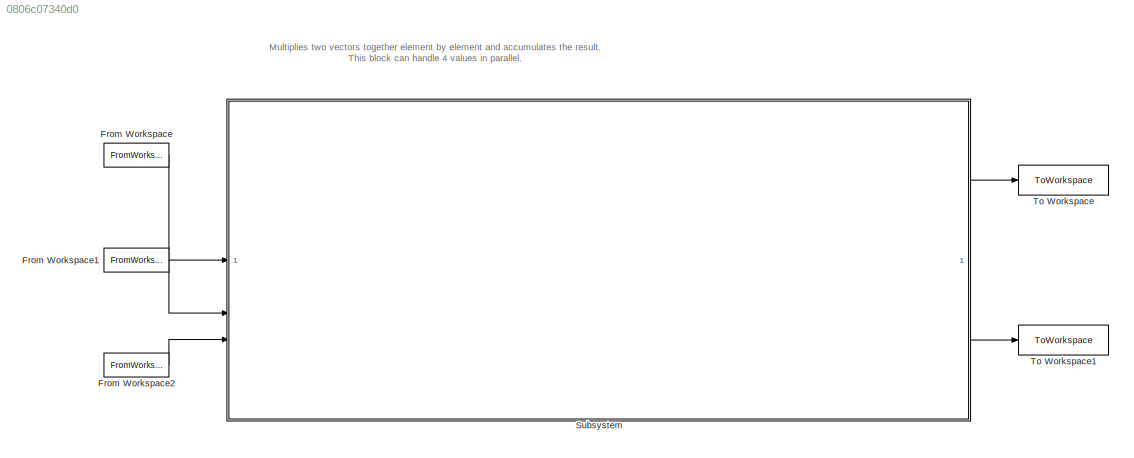
MODEL slx_0806c07340d0
KIND model
CONFIG AbsTol = auto
CONFIG EnableMultiTasking = off
CONFIG FixedStep = auto
CONFIG MaxStep = auto
CONFIG MinStep = auto
CONFIG RelTol = 1e-3
CONFIG SampleTimeConstraint = Unconstrained
CONFIG SolverName = VariableStepAuto
CONFIG StartTime = 0.0
CONFIG StopTime = 39
BLOCK [FromWorkspace] From Workspace
  OutputAfterFinalValue = Setting to zero
  SampleTime = 1
  VariableName = sl_a
BLOCK [FromWorkspace] From Workspace1
  OutputAfterFinalValue = Setting to zero
  SampleTime = 1
  VariableName = sl_b
BLOCK [FromWorkspace] From Workspace2
  OutputAfterFinalValue = Setting to zero
  SampleTime = 1
  VariableName = sl_valid
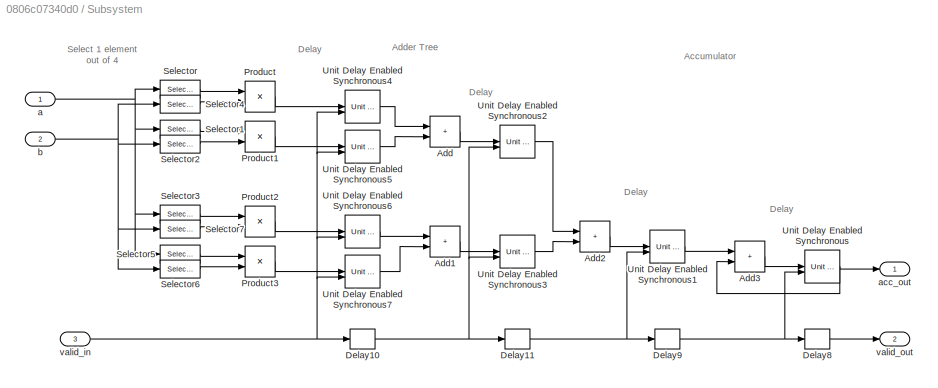
BLOCK [SubSystem] Subsystem
BLOCK [Sum] Subsystem/Add
  IconShape = rectangular
BLOCK [Sum] Subsystem/Add1
  IconShape = rectangular
BLOCK [Sum] Subsystem/Add2
  IconShape = rectangular
BLOCK [Sum] Subsystem/Add3
  IconShape = rectangular
BLOCK [Delay] Subsystem/Delay10
  DelayLength = 1
  InputPortMap = u0
BLOCK [Delay] Subsystem/Delay11
  DelayLength = 1
  InputPortMap = u0
BLOCK [Delay] Subsystem/Delay8
  DelayLength = 1
  InputPortMap = u0
BLOCK [Delay] Subsystem/Delay9
  DelayLength = 1
  InputPortMap = u0
BLOCK [Product] Subsystem/Product
BLOCK [Product] Subsystem/Product1
BLOCK [Product] Subsystem/Product2
BLOCK [Product] Subsystem/Product3
BLOCK [Selector] Subsystem/Selector
  IndexMode = Zero-based
  IndexOptions = Index vector (dialog)
  Indices = [0]
  InputPortWidth = 4
  OutputSizes = 1
BLOCK [Selector] Subsystem/Selector1
  IndexMode = Zero-based
  IndexOptions = Index vector (dialog)
  Indices = [1]
  InputPortWidth = 4
  OutputSizes = 1
BLOCK [Selector] Subsystem/Selector2
  IndexMode = Zero-based
  IndexOptions = Index vector (dialog)
  Indices = [1]
  InputPortWidth = 4
  OutputSizes = 1
BLOCK [Selector] Subsystem/Selector3
  IndexMode = Zero-based
  IndexOptions = Index vector (dialog)
  Indices = [2]
  InputPortWidth = 4
  OutputSizes = 1
BLOCK [Selector] Subsystem/Selector4
  IndexMode = Zero-based
  IndexOptions = Index vector (dialog)
  Indices = [0]
  InputPortWidth = 4
  OutputSizes = 1
BLOCK [Selector] Subsystem/Selector5
  IndexMode = Zero-based
  IndexOptions = Index vector (dialog)
  Indices = [3]
  InputPortWidth = 4
  OutputSizes = 1
BLOCK [Selector] Subsystem/Selector6
  IndexMode = Zero-based
  IndexOptions = Index vector (dialog)
  Indices = [3]
  InputPortWidth = 4
  OutputSizes = 1
BLOCK [Selector] Subsystem/Selector7
  IndexMode = Zero-based
  IndexOptions = Index vector (dialog)
  Indices = [2]
  InputPortWidth = 4
  OutputSizes = 1
BLOCK [Reference] Subsystem/Unit Delay Enabled Synchronous  REF=hdlsllib/Discrete/Unit Delay Enabled
Synchronous
  SourceBlock = hdlsllib/Discrete/Unit Delay Enabled\nSynchronous
  SourceType = Unit Delay Enabled Synchronous
BLOCK [Reference] Subsystem/Unit Delay Enabled Synchronous1  REF=hdlsllib/Discrete/Unit Delay Enabled
Synchronous
  SourceBlock = hdlsllib/Discrete/Unit Delay Enabled\nSynchronous
  SourceType = Unit Delay Enabled Synchronous
BLOCK [Reference] Subsystem/Unit Delay Enabled Synchronous2  REF=hdlsllib/Discrete/Unit Delay Enabled
Synchronous
  SourceBlock = hdlsllib/Discrete/Unit Delay Enabled\nSynchronous
  SourceType = Unit Delay Enabled Synchronous
BLOCK [Reference] Subsystem/Unit Delay Enabled Synchronous3  REF=hdlsllib/Discrete/Unit Delay Enabled
Synchronous
  SourceBlock = hdlsllib/Discrete/Unit Delay Enabled\nSynchronous
  SourceType = Unit Delay Enabled Synchronous
BLOCK [Reference] Subsystem/Unit Delay Enabled Synchronous4  REF=hdlsllib/Discrete/Unit Delay Enabled
Synchronous
  SourceBlock = hdlsllib/Discrete/Unit Delay Enabled\nSynchronous
  SourceType = Unit Delay Enabled Synchronous
BLOCK [Reference] Subsystem/Unit Delay Enabled Synchronous5  REF=hdlsllib/Discrete/Unit Delay Enabled
Synchronous
  SourceBlock = hdlsllib/Discrete/Unit Delay Enabled\nSynchronous
  SourceType = Unit Delay Enabled Synchronous
BLOCK [Reference] Subsystem/Unit Delay Enabled Synchronous6  REF=hdlsllib/Discrete/Unit Delay Enabled
Synchronous
  SourceBlock = hdlsllib/Discrete/Unit Delay Enabled\nSynchronous
  SourceType = Unit Delay Enabled Synchronous
BLOCK [Reference] Subsystem/Unit Delay Enabled Synchronous7  REF=hdlsllib/Discrete/Unit Delay Enabled
Synchronous
  SourceBlock = hdlsllib/Discrete/Unit Delay Enabled\nSynchronous
  SourceType = Unit Delay Enabled Synchronous
BLOCK [Inport] Subsystem/a
BLOCK [Outport] Subsystem/acc_out
BLOCK [Inport] Subsystem/b
  Port = 2
BLOCK [Inport] Subsystem/valid_in
  Port = 3
BLOCK [Outport] Subsystem/valid_out
  Port = 2
BLOCK [ToWorkspace] To Workspace
  FixptAsFi = on
  MaxDataPoints = inf
  SampleTime = -1
  SaveFormat = Timeseries
  VariableName = sl_acc
BLOCK [ToWorkspace] To Workspace1
  FixptAsFi = on
  MaxDataPoints = inf
  SampleTime = -1
  SaveFormat = Timeseries
  VariableName = sl_valid_out
ANNOTATION (root): Multiplies two vectors together element by element and accumulates the result. This block can handle 4 values in parallel.
ANNOTATION Subsystem: Accumulator
ANNOTATION Subsystem: Adder Tree
ANNOTATION Subsystem: Delay
ANNOTATION Subsystem: Select 1 element out of 4
LINE From Workspace1:1 -> Subsystem:2
LINE From Workspace2:1 -> Subsystem:3
LINE From Workspace:1 -> Subsystem:1
LINE Subsystem/Add1:1 -> Subsystem/Unit Delay Enabled Synchronous3:1
LINE Subsystem/Add2:1 -> Subsystem/Unit Delay Enabled Synchronous1:1
LINE Subsystem/Add3:1 -> Subsystem/Unit Delay Enabled Synchronous:1
LINE Subsystem/Add:1 -> Subsystem/Unit Delay Enabled Synchronous2:1
NET Subsystem/Delay10:1 -> Subsystem/Delay11:1, Subsystem/Unit Delay Enabled Synchronous2:2, Subsystem/Unit Delay Enabled Synchronous3:2
NET Subsystem/Delay11:1 -> Subsystem/Delay9:1, Subsystem/Unit Delay Enabled Synchronous1:2
LINE Subsystem/Delay8:1 -> Subsystem/valid_out:1
NET Subsystem/Delay9:1 -> Subsystem/Delay8:1, Subsystem/Unit Delay Enabled Synchronous:2
LINE Subsystem/Product1:1 -> Subsystem/Unit Delay Enabled Synchronous5:1
LINE Subsystem/Product2:1 -> Subsystem/Unit Delay Enabled Synchronous6:1
LINE Subsystem/Product3:1 -> Subsystem/Unit Delay Enabled Synchronous7:1
LINE Subsystem/Product:1 -> Subsystem/Unit Delay Enabled Synchronous4:1
LINE Subsystem/Selector1:1 -> Subsystem/Product1:1
LINE Subsystem/Selector2:1 -> Subsystem/Product1:2
LINE Subsystem/Selector3:1 -> Subsystem/Product2:1
LINE Subsystem/Selector4:1 -> Subsystem/Product:2
LINE Subsystem/Selector5:1 -> Subsystem/Product3:1
LINE Subsystem/Selector6:1 -> Subsystem/Product3:2
LINE Subsystem/Selector7:1 -> Subsystem/Product2:2
LINE Subsystem/Selector:1 -> Subsystem/Product:1
LINE Subsystem/Unit Delay Enabled Synchronous1:1 -> Subsystem/Add3:1
LINE Subsystem/Unit Delay Enabled Synchronous2:1 -> Subsystem/Add2:1
LINE Subsystem/Unit Delay Enabled Synchronous3:1 -> Subsystem/Add2:2
LINE Subsystem/Unit Delay Enabled Synchronous4:1 -> Subsystem/Add:1
LINE Subsystem/Unit Delay Enabled Synchronous5:1 -> Subsystem/Add:2
LINE Subsystem/Unit Delay Enabled Synchronous6:1 -> Subsystem/Add1:1
LINE Subsystem/Unit Delay Enabled Synchronous7:1 -> Subsystem/Add1:2
NET Subsystem/Unit Delay Enabled Synchronous:1 -> Subsystem/Add3:2, Subsystem/acc_out:1
NET Subsystem/a:1 -> Subsystem/Selector1:1, Subsystem/Selector3:1, Subsystem/Selector5:1, Subsystem/Selector:1
NET Subsystem/b:1 -> Subsystem/Selector2:1, Subsystem/Selector4:1, Subsystem/Selector6:1, Subsystem/Selector7:1
NET Subsystem/valid_in:1 -> Subsystem/Delay10:1, Subsystem/Unit Delay Enabled Synchronous4:2, Subsystem/Unit Delay Enabled Synchronous5:2, Subsystem/Unit Delay Enabled Synchronous6:2, Subsystem/Unit Delay Enabled Synchronous7:2
LINE Subsystem:1 -> To Workspace:1
LINE Subsystem:2 -> To Workspace1:1
note: NET lines group one-source signal fan-out (src -> all destinations, sorted); 1:1 wires keep LINE
